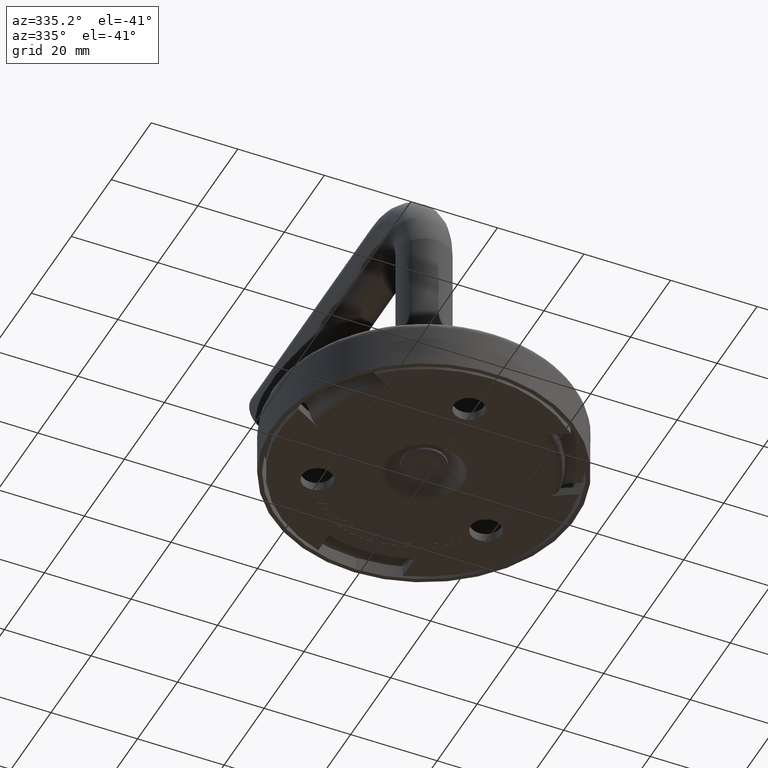
[diagram: clean part render]
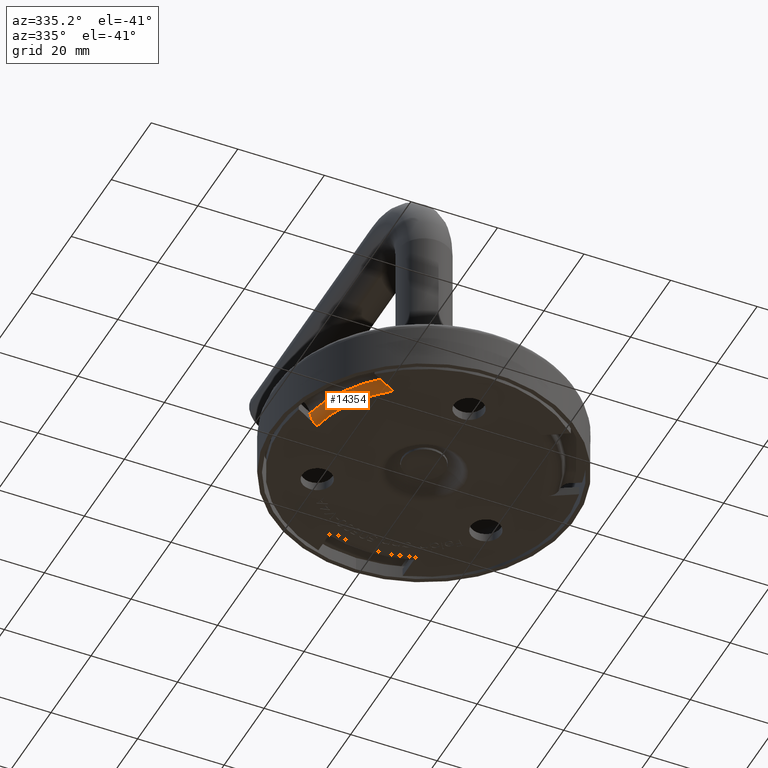
[diagram: same view with one face highlighted and labeled with its STEP entity id]
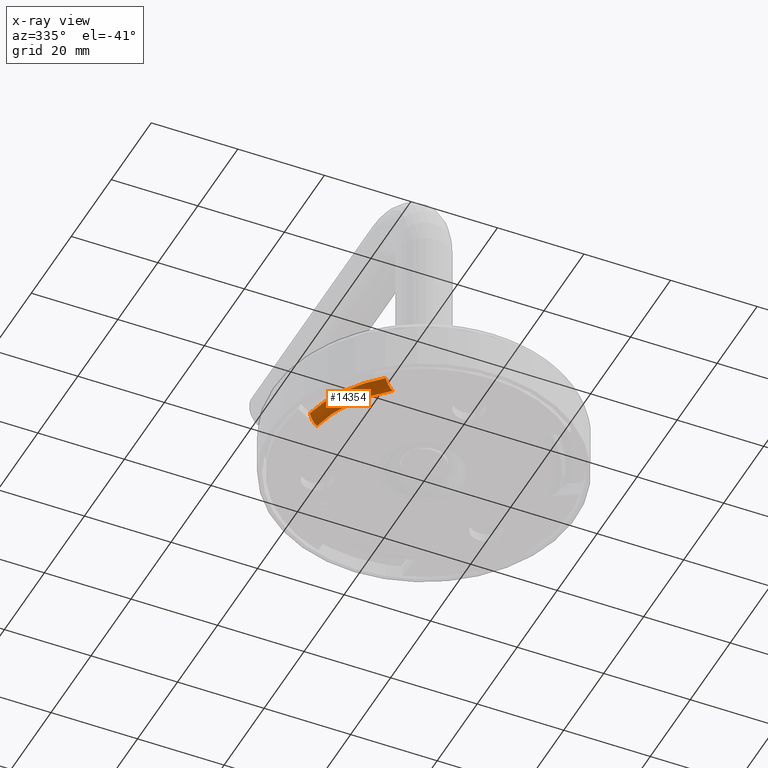
[diagram: x-ray of the same camera — body ghosted, the highlighted face saturated]
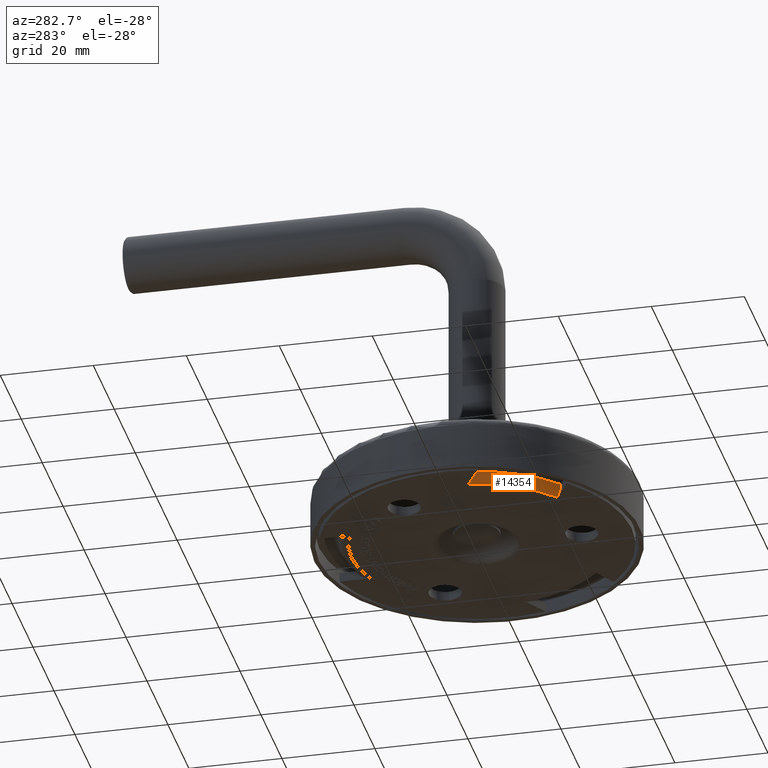
[diagram: same view with one face highlighted and labeled with its STEP entity id]
A machine part, auxiliary view. The second image highlights one B-rep face of the part: STEP entity #14354.
The next image is the same camera in x-ray: the body ghosted, the highlighted face saturated — about 0% of this face is hidden behind the body in this view.
A second angle (auxiliary view) of the same face is appended — the face is thin or edge-on in the first view.
In plain terms, the highlighted toroidal blend (fillet) surface has major radius 27 mm and minor (blend) radius 2.5 mm.
Its self-contained STEP definition (entity closure, byte-faithful):
#914 = DIRECTION ( 'NONE',  ( 1.053822821695700200E-030, 2.095411779493315200E-031, -1.000000000000000000 ) ) ;
#1146 = CARTESIAN_POINT ( 'NONE',  ( 28.23297647628128000, -5.041986319407718600, -0.6294935080458785600 ) ) ;
#1190 = CARTESIAN_POINT ( 'NONE',  ( 28.41206418050947800, -5.145382653652425200, -0.8236414083475460700 ) ) ;
#1239 = CARTESIAN_POINT ( 'NONE',  ( 27.93730469056829000, -4.871280134334546700, -0.3973551638354287400 ) ) ;
#1427 = ORIENTED_EDGE ( 'NONE', *, *, #3702, .F. ) ;
#1729 = FACE_OUTER_BOUND ( 'NONE', #8638, .T. ) ;
#1853 = ORIENTED_EDGE ( 'NONE', *, *, #10316, .T. ) ;
#1898 = CARTESIAN_POINT ( 'NONE',  ( 28.88921220495712900, -5.420864194010536400, -1.777777777777764800 ) ) ;
#2069 = EDGE_CURVE ( 'NONE', #4513, #12903, #3566, .T. ) ;
#2317 = CARTESIAN_POINT ( 'NONE',  ( 2.634557054239233200E-030, 5.238529448733252600E-031, -2.499999999999985300 ) ) ;
#2611 = CIRCLE ( 'NONE', #3526, 29.39340658094855700 ) ;
#2834 = CARTESIAN_POINT ( 'NONE',  ( 17.86655907746445500, -21.57359294206408900, -0.2098728989196730300 ) ) ;
#3526 = AXIS2_PLACEMENT_3D ( 'NONE', #13438, #914, #11148 ) ;
#3566 = B_SPLINE_CURVE_WITH_KNOTS ( 'NONE', 3,
 ( #13713, #6879, #4770, #6918, #10380, #8025, #7979, #13767, #1239, #1146, #1190, #13906, #10290, #10475 ),
 .UNSPECIFIED., .F., .F.,
 ( 4, 2, 2, 2, 2, 2, 4 ),
 ( 0.003333664579547285700, 0.003747166311686940700, 0.004160668043826596200, 0.004574169775966251600, 0.004987671508105907100, 0.005814674972385215500, 0.006641678436664524700 ),
 .UNSPECIFIED. ) ;
#3635 = AXIS2_PLACEMENT_3D ( 'NONE', #12299, #6495, #6344 ) ;
#3702 = EDGE_CURVE ( 'NONE', #12903, #5497, #2611, .T. ) ;
#4513 = VERTEX_POINT ( 'NONE', #9503 ) ;
#4770 = CARTESIAN_POINT ( 'NONE',  ( 26.92123916071037800, -4.284654427156783500, -0.01020273115367304800 ) ) ;
#5056 = CARTESIAN_POINT ( 'NONE',  ( 19.13921220495711900, -22.30835956780701700, -1.777777777777764400 ) ) ;
#5140 = VERTEX_POINT ( 'NONE', #13122 ) ;
#5497 = VERTEX_POINT ( 'NONE', #9755 ) ;
#5596 = EDGE_CURVE ( 'NONE', #4513, #5140, #6481, .T. ) ;
#6210 = ORIENTED_EDGE ( 'NONE', *, *, #5596, .T. ) ;
#6344 = DIRECTION ( 'NONE',  ( -1.000000000000000000, -8.381647117973245200E-031, 1.053822821695697400E-030 ) ) ;
#6481 = CIRCLE ( 'NONE', #3635, 26.99999999999990100 ) ;
#6495 = DIRECTION ( 'NONE',  ( 1.053822821695700200E-030, 2.095411779493315200E-031, -1.000000000000000000 ) ) ;
#6833 = B_SPLINE_CURVE_WITH_KNOTS ( 'NONE', 3,
 ( #8355, #7468, #7316, #8407, #10828, #14286, #2834, #9612, #13104, #9714, #7427, #14195, #9569, #5056 ),
 .UNSPECIFIED., .F., .F.,
 ( 4, 2, 2, 2, 2, 2, 4 ),
 ( 0.003333664579546472900, 0.003747166311686133200, 0.004160668043825793900, 0.004574169775965453700, 0.004987671508105114400, 0.005814674972384434800, 0.006641678436663755300 ),
 .UNSPECIFIED. ) ;
#6879 = CARTESIAN_POINT ( 'NONE',  ( 26.79998553569162600, -4.214648614111984800, 3.240860993921258900E-014 ) ) ;
#6918 = CARTESIAN_POINT ( 'NONE',  ( 27.15789152557968200, -4.421285733718439900, -0.05028959223715631600 ) ) ;
#7316 = CARTESIAN_POINT ( 'NONE',  ( 17.17123916071040000, -21.17214980095322500, -0.01020273115366794900 ) ) ;
#7427 = CARTESIAN_POINT ( 'NONE',  ( 18.66206418050953200, -22.03287802744887700, -0.8236414083475343000 ) ) ;
#7468 = CARTESIAN_POINT ( 'NONE',  ( 17.04998553569162200, -21.10214398790842000, 3.511195088341409300E-014 ) ) ;
#7979 = CARTESIAN_POINT ( 'NONE',  ( 27.61655907746442300, -4.686097568267640200, -0.2098728989196915800 ) ) ;
#8025 = CARTESIAN_POINT ( 'NONE',  ( 27.50313457422466700, -4.620611900789465500, -0.1596169034018286900 ) ) ;
#8061 = AXIS2_PLACEMENT_3D ( 'NONE', #2317, #8290, #11791 ) ;
#8290 = DIRECTION ( 'NONE',  ( 1.053822821695700200E-030, 2.095411779493315200E-031, -1.000000000000000000 ) ) ;
#8355 = CARTESIAN_POINT ( 'NONE',  ( 16.92988764015983000, -21.03280543559404600, -1.343386313739090200E-029 ) ) ;
#8407 = CARTESIAN_POINT ( 'NONE',  ( 17.40789152557971100, -21.30878110751488200, -0.05028959223714893300 ) ) ;
#8638 = EDGE_LOOP ( 'NONE', ( #13395, #6210, #1853, #1427 ) ) ;
#9503 = CARTESIAN_POINT ( 'NONE',  ( 26.67988764015983700, -4.145310061797570000, -2.724726132216313200E-029 ) ) ;
#9569 = CARTESIAN_POINT ( 'NONE',  ( 19.06535932879879900, -22.26572058987656200, -1.511171601879718300 ) ) ;
#9612 = CARTESIAN_POINT ( 'NONE',  ( 18.08372789324887000, -21.69897541631681300, -0.3289154268044370300 ) ) ;
#9714 = CARTESIAN_POINT ( 'NONE',  ( 18.48297647628130800, -21.92948169320417100, -0.6294935080458633500 ) ) ;
#9755 = CARTESIAN_POINT ( 'NONE',  ( 19.13921220495711900, -22.30835956780701700, -1.777777777777764400 ) ) ;
#10290 = CARTESIAN_POINT ( 'NONE',  ( 28.81535932879874900, -5.378225216080101800, -1.511171601879732500 ) ) ;
#10316 = EDGE_CURVE ( 'NONE', #5140, #5497, #6833, .T. ) ;
#10380 = CARTESIAN_POINT ( 'NONE',  ( 27.27428289049790400, -4.488484319585326800, -0.08011036018040861000 ) ) ;
#10464 = TOROIDAL_SURFACE ( 'NONE', #8061, 27.00000000000000000, 2.500000000000000000 ) ;
#10475 = CARTESIAN_POINT ( 'NONE',  ( 28.88921220495712900, -5.420864194010536400, -1.777777777777764800 ) ) ;
#10828 = CARTESIAN_POINT ( 'NONE',  ( 17.52428289049794000, -21.37597969338177300, -0.08011036018040029700 ) ) ;
#11148 = DIRECTION ( 'NONE',  ( -1.000000000000000000, -8.381647117973246900E-031, 0.0000000000000000000 ) ) ;
#11791 = DIRECTION ( 'NONE',  ( -1.000000000000000000, -8.381647117973246900E-031, -1.053822821695700200E-030 ) ) ;
#12299 = CARTESIAN_POINT ( 'NONE',  ( 0.0000000000000000000, 0.0000000000000000000, 0.0000000000000000000 ) ) ;
#12903 = VERTEX_POINT ( 'NONE', #1898 ) ;
#13104 = CARTESIAN_POINT ( 'NONE',  ( 18.18730469056832900, -21.75877550813099900, -0.3973551638354178000 ) ) ;
#13122 = CARTESIAN_POINT ( 'NONE',  ( 16.92988764015983000, -21.03280543559404600, -1.343386313739090200E-029 ) ) ;
#13395 = ORIENTED_EDGE ( 'NONE', *, *, #2069, .F. ) ;
#13438 = CARTESIAN_POINT ( 'NONE',  ( 1.873462794125674700E-030, 3.725176496876977300E-031, -1.777777777777763000 ) ) ;
#13713 = CARTESIAN_POINT ( 'NONE',  ( 26.67988764015983700, -4.145310061797570000, -2.724726132216313200E-029 ) ) ;
#13767 = CARTESIAN_POINT ( 'NONE',  ( 27.83372789324882700, -4.811480042520356500, -0.3289154268044517900 ) ) ;
#13906 = CARTESIAN_POINT ( 'NONE',  ( 28.70101041505565600, -5.312205839948987300, -1.261679151299394600 ) ) ;
#14195 = CARTESIAN_POINT ( 'NONE',  ( 18.95101041505570500, -22.19970121374544500, -1.261679151299383700 ) ) ;
#14286 = CARTESIAN_POINT ( 'NONE',  ( 17.75313457422468800, -21.50810727458590700, -0.1596169034018155300 ) ) ;
#14354 = ADVANCED_FACE ( 'NONE', ( #1729 ), #10464, .T. ) ;